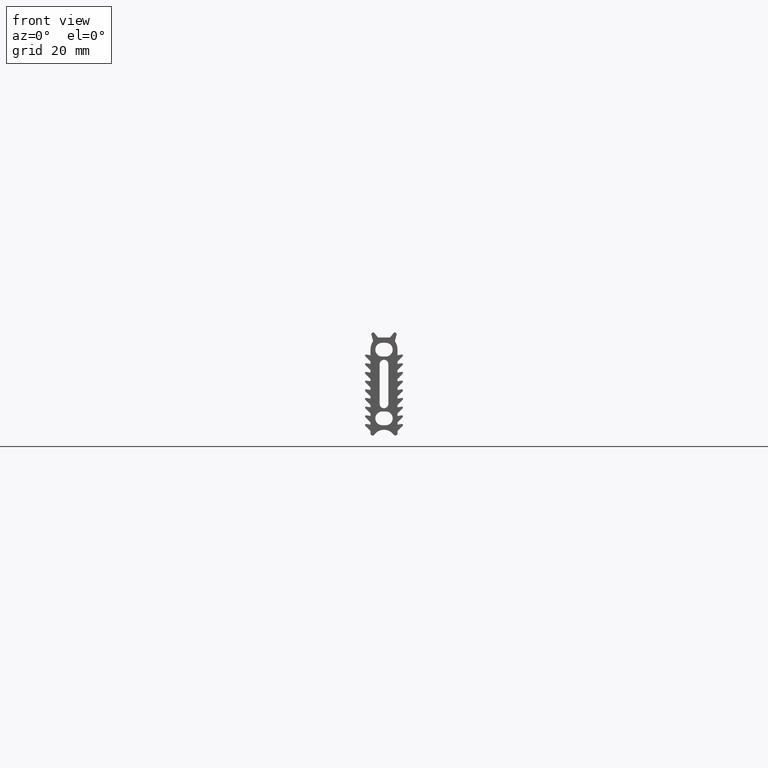
[diagram: clean part render]
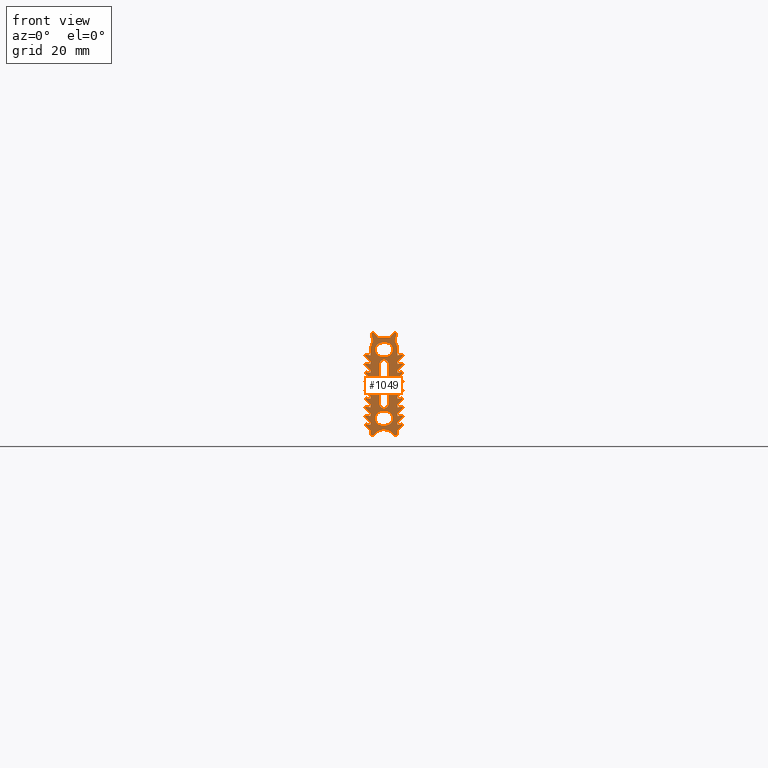
[diagram: same view with one face highlighted and labeled with its STEP entity id]
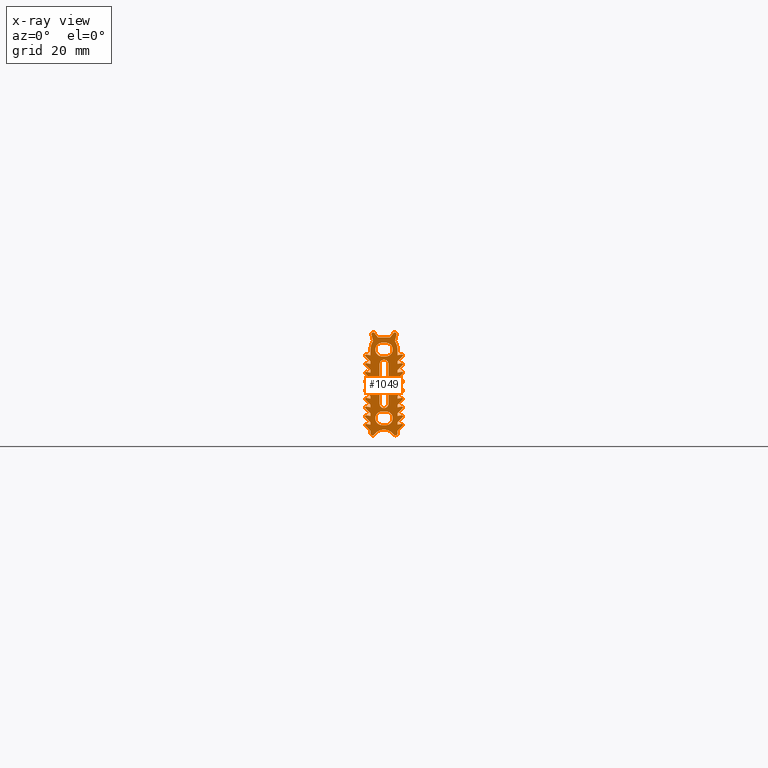
[diagram: x-ray of the same camera — body ghosted, the highlighted face saturated]
A machine part, front view. The second image highlights one B-rep face of the part: STEP entity #1049.
The next image is the same camera in x-ray: the body ghosted, the highlighted face saturated — about 0% of this face is hidden behind the body in this view.
In plain terms, the highlighted face is a freeform B-spline surface patch.
Its self-contained STEP definition (entity closure, byte-faithful):
#44=CARTESIAN_POINT('',(-5.774347078321835,0.0,2.823542531187559));
#45=CARTESIAN_POINT('',(5.774347078321842,0.0,2.823542531187559));
#46=CARTESIAN_POINT('',(-5.774347078321835,0.0,-28.523458698436340));
#47=CARTESIAN_POINT('',(5.774347078321842,0.0,-28.523458698436340));
#48=B_SPLINE_SURFACE_WITH_KNOTS('',1,1,((#44,#46),(#45,#47)),.UNSPECIFIED.,.F.,.F.,.U.,(2,2),(2,2),(0.0,11.548694156643680),(0.0,31.347001229623899),.UNSPECIFIED.);
#49=CARTESIAN_POINT('',(2.607942751445665,0.0,1.210308095053820));
#50=VERTEX_POINT('',#49);
#51=CARTESIAN_POINT('',(1.650000000000000,0.0,0.0));
#52=VERTEX_POINT('',#51);
#53=CARTESIAN_POINT('',(2.607942751445665,0.0,1.210308095053820));
#54=CARTESIAN_POINT('',(1.650000000000000,0.0,0.0));
#55=QUASI_UNIFORM_CURVE('',1,(#53,#54),.UNSPECIFIED.,.F.,.U.);
#56=EDGE_CURVE('',#50,#52,#55,.T.);
#57=ORIENTED_EDGE('',*,*,#56,.T.);
#58=CARTESIAN_POINT('',(-1.650000000000000,0.0,0.0));
#59=VERTEX_POINT('',#58);
#60=CARTESIAN_POINT('',(1.650000000000000,0.0,0.0));
#61=CARTESIAN_POINT('',(-1.650000000000000,0.0,0.0));
#62=QUASI_UNIFORM_CURVE('',1,(#60,#61),.UNSPECIFIED.,.F.,.U.);
#63=EDGE_CURVE('',#52,#59,#62,.T.);
#64=ORIENTED_EDGE('',*,*,#63,.T.);
#65=CARTESIAN_POINT('',(-2.607942751445550,0.0,1.210308095053846));
#66=VERTEX_POINT('',#65);
#67=CARTESIAN_POINT('',(-1.650000000000000,0.0,0.0));
#68=CARTESIAN_POINT('',(-2.607942751445550,0.0,1.210308095053846));
#69=QUASI_UNIFORM_CURVE('',1,(#67,#68),.UNSPECIFIED.,.F.,.U.);
#70=EDGE_CURVE('',#59,#66,#69,.T.);
#71=ORIENTED_EDGE('',*,*,#70,.T.);
#72=CARTESIAN_POINT('',(-3.482962913144495,0.0,0.770590477448715));
#73=VERTEX_POINT('',#72);
#74=CARTESIAN_POINT('',(-2.607942751445550,0.0,1.210308095053846));
#75=CARTESIAN_POINT('',(-2.860660747035028,0.0,1.529603413449483));
#76=CARTESIAN_POINT('',(-3.224508030528344,0.0,1.346761842851687));
#77=CARTESIAN_POINT('',(-3.588355314021661,0.0,1.163920272253890));
#78=CARTESIAN_POINT('',(-3.482962913144504,0.0,0.770590477448712));
#86=(BOUNDED_CURVE()B_SPLINE_CURVE(2,(#74,#75,#76,#77,#78),.UNSPECIFIED.,.F.,.U.)B_SPLINE_CURVE_WITH_KNOTS((3,2,3),(0.0,0.500000000000000,1.0),.UNSPECIFIED.)CURVE()GEOMETRIC_REPRESENTATION_ITEM()RATIONAL_B_SPLINE_CURVE((1.0,0.775388696939473,1.0,0.775388696939473,1.0))REPRESENTATION_ITEM(''));
#87=EDGE_CURVE('',#66,#73,#86,.T.);
#88=ORIENTED_EDGE('',*,*,#87,.T.);
#89=CARTESIAN_POINT('',(-3.014889893381550,0.0,-0.976281813958963));
#90=VERTEX_POINT('',#89);
#91=CARTESIAN_POINT('',(-3.482962913144495,0.0,0.770590477448715));
#92=CARTESIAN_POINT('',(-3.014889893381550,0.0,-0.976281813958963));
#93=QUASI_UNIFORM_CURVE('',1,(#91,#92),.UNSPECIFIED.,.F.,.U.);
#94=EDGE_CURVE('',#73,#90,#93,.T.);
#95=ORIENTED_EDGE('',*,*,#94,.T.);
#96=CARTESIAN_POINT('',(-3.749999999999940,0.0,-3.350000000000000));
#97=VERTEX_POINT('',#96);
#98=CARTESIAN_POINT('',(-3.014889893381552,0.0,-0.976281813958961));
#99=CARTESIAN_POINT('',(-3.749999999999940,0.0,-2.049313816630190));
#100=CARTESIAN_POINT('',(-3.749999999999940,0.0,-3.350000000000000));
#108=(BOUNDED_CURVE()B_SPLINE_CURVE(2,(#98,#99,#100),.UNSPECIFIED.,.F.,.U.)CURVE()GEOMETRIC_REPRESENTATION_ITEM()QUASI_UNIFORM_CURVE()RATIONAL_B_SPLINE_CURVE((1.0,0.955241797697965,1.0))REPRESENTATION_ITEM(''));
#109=EDGE_CURVE('',#90,#97,#108,.T.);
#110=ORIENTED_EDGE('',*,*,#109,.T.);
#111=CARTESIAN_POINT('',(-3.750000000000000,0.0,-4.900000000000000));
#112=VERTEX_POINT('',#111);
#113=CARTESIAN_POINT('',(-3.749999999999940,0.0,-3.350000000000000));
#114=CARTESIAN_POINT('',(-3.750000000000000,0.0,-4.900000000000000));
#115=QUASI_UNIFORM_CURVE('',1,(#113,#114),.UNSPECIFIED.,.F.,.U.);
#116=EDGE_CURVE('',#97,#112,#115,.T.);
#117=ORIENTED_EDGE('',*,*,#116,.T.);
#118=CARTESIAN_POINT('',(-4.899645318185560,0.0,-4.704256181773199));
#119=VERTEX_POINT('',#118);
#120=CARTESIAN_POINT('',(-3.750000000000000,0.0,-4.900000000000000));
#121=CARTESIAN_POINT('',(-4.899645318185560,0.0,-4.704256181773199));
#122=QUASI_UNIFORM_CURVE('',1,(#120,#121),.UNSPECIFIED.,.F.,.U.);
#123=EDGE_CURVE('',#112,#119,#122,.T.);
#124=ORIENTED_EDGE('',*,*,#123,.T.);
#125=CARTESIAN_POINT('',(-5.162132034355720,0.0,-5.212132034356091));
#126=VERTEX_POINT('',#125);
#127=CARTESIAN_POINT('',(-4.899645318185560,0.0,-4.704256181773199));
#128=CARTESIAN_POINT('',(-5.115825259202054,0.0,-4.667448406010207));
#129=CARTESIAN_POINT('',(-5.216509752838508,0.0,-4.862259114123710));
#130=CARTESIAN_POINT('',(-5.317194246474962,0.0,-5.057069822237211));
#131=CARTESIAN_POINT('',(-5.162132034355729,0.0,-5.212132034356100));
#139=(BOUNDED_CURVE()B_SPLINE_CURVE(2,(#127,#128,#129,#130,#131),.UNSPECIFIED.,.F.,.U.)B_SPLINE_CURVE_WITH_KNOTS((3,2,3),(0.0,0.500000000000000,1.0),.UNSPECIFIED.)CURVE()GEOMETRIC_REPRESENTATION_ITEM()RATIONAL_B_SPLINE_CURVE((1.0,0.807313795904299,1.0,0.807313795904299,1.0))REPRESENTATION_ITEM(''));
#140=EDGE_CURVE('',#119,#126,#139,.T.);
#141=ORIENTED_EDGE('',*,*,#140,.T.);
#142=CARTESIAN_POINT('',(-3.749999999999330,0.0,-6.624264068709540));
#143=VERTEX_POINT('',#142);
#144=CARTESIAN_POINT('',(-5.162132034355720,0.0,-5.212132034356091));
#145=CARTESIAN_POINT('',(-3.749999999999330,0.0,-6.624264068709540));
#146=QUASI_UNIFORM_CURVE('',1,(#144,#145),.UNSPECIFIED.,.F.,.U.);
#147=EDGE_CURVE('',#126,#143,#146,.T.);
#148=ORIENTED_EDGE('',*,*,#147,.T.);
#149=CARTESIAN_POINT('',(-3.750000000000000,0.0,-7.300000000000080));
#150=VERTEX_POINT('',#149);
#151=CARTESIAN_POINT('',(-3.749999999999330,0.0,-6.624264068709540));
#152=CARTESIAN_POINT('',(-3.750000000000000,0.0,-7.300000000000080));
#153=QUASI_UNIFORM_CURVE('',1,(#151,#152),.UNSPECIFIED.,.F.,.U.);
#154=EDGE_CURVE('',#143,#150,#153,.T.);
#155=ORIENTED_EDGE('',*,*,#154,.T.);
#156=CARTESIAN_POINT('',(-4.899645318185560,0.0,-7.104256181773170));
#157=VERTEX_POINT('',#156);
#158=CARTESIAN_POINT('',(-3.750000000000000,0.0,-7.300000000000080));
#159=CARTESIAN_POINT('',(-4.899645318185560,0.0,-7.104256181773170));
#160=QUASI_UNIFORM_CURVE('',1,(#158,#159),.UNSPECIFIED.,.F.,.U.);
#161=EDGE_CURVE('',#150,#157,#160,.T.);
#162=ORIENTED_EDGE('',*,*,#161,.T.);
#163=CARTESIAN_POINT('',(-5.162132034355720,0.0,-7.612132034356180));
#164=VERTEX_POINT('',#163);
#165=CARTESIAN_POINT('',(-4.899645318185560,0.0,-7.104256181773170));
#166=CARTESIAN_POINT('',(-5.115825259202066,0.0,-7.067448406010321));
#167=CARTESIAN_POINT('',(-5.216509752838511,0.0,-7.262259114123816));
#168=CARTESIAN_POINT('',(-5.317194246474956,0.0,-7.457069822237310));
#169=CARTESIAN_POINT('',(-5.162132034355734,0.0,-7.612132034356195));
#177=(BOUNDED_CURVE()B_SPLINE_CURVE(2,(#165,#166,#167,#168,#169),.UNSPECIFIED.,.F.,.U.)B_SPLINE_CURVE_WITH_KNOTS((3,2,3),(0.0,0.500000000000000,1.0),.UNSPECIFIED.)CURVE()GEOMETRIC_REPRESENTATION_ITEM()RATIONAL_B_SPLINE_CURVE((1.0,0.807313795904314,1.0,0.807313795904314,1.0))REPRESENTATION_ITEM(''));
#178=EDGE_CURVE('',#157,#164,#177,.T.);
#179=ORIENTED_EDGE('',*,*,#178,.T.);
#180=CARTESIAN_POINT('',(-3.749999999999310,0.0,-9.024264068709609));
#181=VERTEX_POINT('',#180);
#182=CARTESIAN_POINT('',(-5.162132034355720,0.0,-7.612132034356180));
#183=CARTESIAN_POINT('',(-3.749999999999310,0.0,-9.024264068709609));
#184=QUASI_UNIFORM_CURVE('',1,(#182,#183),.UNSPECIFIED.,.F.,.U.);
#185=EDGE_CURVE('',#164,#181,#184,.T.);
#186=ORIENTED_EDGE('',*,*,#185,.T.);
#187=CARTESIAN_POINT('',(-3.750000000000000,0.0,-9.700000000000001));
#188=VERTEX_POINT('',#187);
#189=CARTESIAN_POINT('',(-3.749999999999310,0.0,-9.024264068709609));
#190=CARTESIAN_POINT('',(-3.750000000000000,0.0,-9.700000000000001));
#191=QUASI_UNIFORM_CURVE('',1,(#189,#190),.UNSPECIFIED.,.F.,.U.);
#192=EDGE_CURVE('',#181,#188,#191,.T.);
#193=ORIENTED_EDGE('',*,*,#192,.T.);
#194=CARTESIAN_POINT('',(-4.899645318185560,0.0,-9.504256181773261));
#195=VERTEX_POINT('',#194);
#196=CARTESIAN_POINT('',(-3.750000000000000,0.0,-9.700000000000001));
#197=CARTESIAN_POINT('',(-4.899645318185560,0.0,-9.504256181773261));
#198=QUASI_UNIFORM_CURVE('',1,(#196,#197),.UNSPECIFIED.,.F.,.U.);
#199=EDGE_CURVE('',#188,#195,#198,.T.);
#200=ORIENTED_EDGE('',*,*,#199,.T.);
#201=CARTESIAN_POINT('',(-5.162132034355720,0.0,-10.012132034356140));
#202=VERTEX_POINT('',#201);
#203=CARTESIAN_POINT('',(-4.899645318185560,0.0,-9.504256181773261));
#204=CARTESIAN_POINT('',(-5.115825259202045,0.0,-9.467448406010314));
#205=CARTESIAN_POINT('',(-5.216509752838501,0.0,-9.662259114123797));
#206=CARTESIAN_POINT('',(-5.317194246474957,0.0,-9.857069822237282));
#207=CARTESIAN_POINT('',(-5.162132034355720,0.0,-10.012132034356140));
#215=(BOUNDED_CURVE()B_SPLINE_CURVE(2,(#203,#204,#205,#206,#207),.UNSPECIFIED.,.F.,.U.)B_SPLINE_CURVE_WITH_KNOTS((3,2,3),(0.0,0.500000000000000,1.0),.UNSPECIFIED.)CURVE()GEOMETRIC_REPRESENTATION_ITEM()RATIONAL_B_SPLINE_CURVE((1.0,0.807313795904319,1.0,0.807313795904319,1.0))REPRESENTATION_ITEM(''));
#216=EDGE_CURVE('',#195,#202,#215,.T.);
#217=ORIENTED_EDGE('',*,*,#216,.T.);
#218=CARTESIAN_POINT('',(-3.749999999999330,0.0,-11.424264068709601));
#219=VERTEX_POINT('',#218);
#220=CARTESIAN_POINT('',(-5.162132034355720,0.0,-10.012132034356140));
#221=CARTESIAN_POINT('',(-3.749999999999330,0.0,-11.424264068709601));
#222=QUASI_UNIFORM_CURVE('',1,(#220,#221),.UNSPECIFIED.,.F.,.U.);
#223=EDGE_CURVE('',#202,#219,#222,.T.);
#224=ORIENTED_EDGE('',*,*,#223,.T.);
#225=CARTESIAN_POINT('',(-3.750000000000000,0.0,-12.100000000000000));
#226=VERTEX_POINT('',#225);
#227=CARTESIAN_POINT('',(-3.749999999999330,0.0,-11.424264068709601));
#228=CARTESIAN_POINT('',(-3.750000000000000,0.0,-12.100000000000000));
#229=QUASI_UNIFORM_CURVE('',1,(#227,#228),.UNSPECIFIED.,.F.,.U.);
#230=EDGE_CURVE('',#219,#226,#229,.T.);
#231=ORIENTED_EDGE('',*,*,#230,.T.);
#232=CARTESIAN_POINT('',(-4.899645318185560,0.0,-11.904256181773240));
#233=VERTEX_POINT('',#232);
#234=CARTESIAN_POINT('',(-3.750000000000000,0.0,-12.100000000000000));
#235=CARTESIAN_POINT('',(-4.899645318185560,0.0,-11.904256181773240));
#236=QUASI_UNIFORM_CURVE('',1,(#234,#235),.UNSPECIFIED.,.F.,.U.);
#237=EDGE_CURVE('',#226,#233,#236,.T.);
#238=ORIENTED_EDGE('',*,*,#237,.T.);
#239=CARTESIAN_POINT('',(-5.162132034355720,0.0,-12.412132034356141));
#240=VERTEX_POINT('',#239);
#241=CARTESIAN_POINT('',(-4.899645318185554,0.0,-11.904256181773199));
#242=CARTESIAN_POINT('',(-5.115825259202047,0.0,-11.867448406010316));
#243=CARTESIAN_POINT('',(-5.216509752838502,0.0,-12.062259114123799));
#244=CARTESIAN_POINT('',(-5.317194246474957,0.0,-12.257069822237279));
#245=CARTESIAN_POINT('',(-5.162132034355720,0.0,-12.412132034356141));
#253=(BOUNDED_CURVE()B_SPLINE_CURVE(2,(#241,#242,#243,#244,#245),.UNSPECIFIED.,.F.,.U.)B_SPLINE_CURVE_WITH_KNOTS((3,2,3),(0.0,0.500000000000000,1.0),.UNSPECIFIED.)CURVE()GEOMETRIC_REPRESENTATION_ITEM()RATIONAL_B_SPLINE_CURVE((1.0,0.807313795904322,1.0,0.807313795904322,1.0))REPRESENTATION_ITEM(''));
#254=EDGE_CURVE('',#233,#240,#253,.T.);
#255=ORIENTED_EDGE('',*,*,#254,.T.);
#256=CARTESIAN_POINT('',(-3.749999999999330,0.0,-13.824264068709560));
#257=VERTEX_POINT('',#256);
#258=CARTESIAN_POINT('',(-5.162132034355720,0.0,-12.412132034356141));
#259=CARTESIAN_POINT('',(-3.749999999999330,0.0,-13.824264068709560));
#260=QUASI_UNIFORM_CURVE('',1,(#258,#259),.UNSPECIFIED.,.F.,.U.);
#261=EDGE_CURVE('',#240,#257,#260,.T.);
#262=ORIENTED_EDGE('',*,*,#261,.T.);
#263=CARTESIAN_POINT('',(-3.750000000000000,0.0,-14.500000000000000));
#264=VERTEX_POINT('',#263);
#265=CARTESIAN_POINT('',(-3.749999999999330,0.0,-13.824264068709560));
#266=CARTESIAN_POINT('',(-3.750000000000000,0.0,-14.500000000000000));
#267=QUASI_UNIFORM_CURVE('',1,(#265,#266),.UNSPECIFIED.,.F.,.U.);
#268=EDGE_CURVE('',#257,#264,#267,.T.);
#269=ORIENTED_EDGE('',*,*,#268,.T.);
#270=CARTESIAN_POINT('',(-4.899645318185560,0.0,-14.304256181773219));
#271=VERTEX_POINT('',#270);
#272=CARTESIAN_POINT('',(-3.750000000000000,0.0,-14.500000000000000));
#273=CARTESIAN_POINT('',(-4.899645318185560,0.0,-14.304256181773219));
#274=QUASI_UNIFORM_CURVE('',1,(#272,#273),.UNSPECIFIED.,.F.,.U.);
#275=EDGE_CURVE('',#264,#271,#274,.T.);
#276=ORIENTED_EDGE('',*,*,#275,.T.);
#277=CARTESIAN_POINT('',(-5.162132034355720,0.0,-14.812132034356219));
#278=VERTEX_POINT('',#277);
#279=CARTESIAN_POINT('',(-4.899645318185557,0.0,-14.304256181773200));
#280=CARTESIAN_POINT('',(-5.115825259202071,0.0,-14.267448406010320));
#281=CARTESIAN_POINT('',(-5.216509752838515,0.0,-14.462259114123830));
#282=CARTESIAN_POINT('',(-5.317194246474960,0.0,-14.657069822237336));
#283=CARTESIAN_POINT('',(-5.162132034355714,0.0,-14.812132034356210));
#291=(BOUNDED_CURVE()B_SPLINE_CURVE(2,(#279,#280,#281,#282,#283),.UNSPECIFIED.,.F.,.U.)B_SPLINE_CURVE_WITH_KNOTS((3,2,3),(0.0,0.500000000000000,1.0),.UNSPECIFIED.)CURVE()GEOMETRIC_REPRESENTATION_ITEM()RATIONAL_B_SPLINE_CURVE((1.0,0.807313795904295,1.0,0.807313795904295,1.0))REPRESENTATION_ITEM(''));
#292=EDGE_CURVE('',#271,#278,#291,.T.);
#293=ORIENTED_EDGE('',*,*,#292,.T.);
#294=CARTESIAN_POINT('',(-3.749999999999330,0.0,-16.224264068709552));
#295=VERTEX_POINT('',#294);
#296=CARTESIAN_POINT('',(-5.162132034355720,0.0,-14.812132034356219));
#297=CARTESIAN_POINT('',(-3.749999999999330,0.0,-16.224264068709552));
#298=QUASI_UNIFORM_CURVE('',1,(#296,#297),.UNSPECIFIED.,.F.,.U.);
#299=EDGE_CURVE('',#278,#295,#298,.T.);
#300=ORIENTED_EDGE('',*,*,#299,.T.);
#301=CARTESIAN_POINT('',(-3.750000000000000,0.0,-16.899999999999999));
#302=VERTEX_POINT('',#301);
#303=CARTESIAN_POINT('',(-3.749999999999330,0.0,-16.224264068709552));
#304=CARTESIAN_POINT('',(-3.750000000000000,0.0,-16.899999999999999));
#305=QUASI_UNIFORM_CURVE('',1,(#303,#304),.UNSPECIFIED.,.F.,.U.);
#306=EDGE_CURVE('',#295,#302,#305,.T.);
#307=ORIENTED_EDGE('',*,*,#306,.T.);
#308=CARTESIAN_POINT('',(-4.899645318185560,0.0,-16.704256181773200));
#309=VERTEX_POINT('',#308);
#310=CARTESIAN_POINT('',(-3.750000000000000,0.0,-16.899999999999999));
#311=CARTESIAN_POINT('',(-4.899645318185560,0.0,-16.704256181773200));
#312=QUASI_UNIFORM_CURVE('',1,(#310,#311),.UNSPECIFIED.,.F.,.U.);
#313=EDGE_CURVE('',#302,#309,#312,.T.);
#314=ORIENTED_EDGE('',*,*,#313,.T.);
#315=CARTESIAN_POINT('',(-5.162132034355720,0.0,-17.212132034356198));
#316=VERTEX_POINT('',#315);
#317=CARTESIAN_POINT('',(-4.899645318185560,0.0,-16.704256181773200));
#318=CARTESIAN_POINT('',(-5.115825259202068,0.0,-16.667448406010319));
#319=CARTESIAN_POINT('',(-5.216509752838513,0.0,-16.862259114123820));
#320=CARTESIAN_POINT('',(-5.317194246474958,0.0,-17.057069822237317));
#321=CARTESIAN_POINT('',(-5.162132034355725,0.0,-17.212132034356209));
#329=(BOUNDED_CURVE()B_SPLINE_CURVE(2,(#317,#318,#319,#320,#321),.UNSPECIFIED.,.F.,.U.)B_SPLINE_CURVE_WITH_KNOTS((3,2,3),(0.0,0.500000000000000,1.0),.UNSPECIFIED.)CURVE()GEOMETRIC_REPRESENTATION_ITEM()RATIONAL_B_SPLINE_CURVE((1.0,0.807313795904305,1.0,0.807313795904305,1.0))REPRESENTATION_ITEM(''));
#330=EDGE_CURVE('',#309,#316,#329,.T.);
#331=ORIENTED_EDGE('',*,*,#330,.T.);
#332=CARTESIAN_POINT('',(-3.749999999999330,0.0,-18.624264068709650));
#333=VERTEX_POINT('',#332);
#334=CARTESIAN_POINT('',(-5.162132034355720,0.0,-17.212132034356198));
#335=CARTESIAN_POINT('',(-3.749999999999330,0.0,-18.624264068709650));
#336=QUASI_UNIFORM_CURVE('',1,(#334,#335),.UNSPECIFIED.,.F.,.U.);
#337=EDGE_CURVE('',#316,#333,#336,.T.);
#338=ORIENTED_EDGE('',*,*,#337,.T.);
#339=CARTESIAN_POINT('',(-3.750000000000000,0.0,-19.300000000000001));
#340=VERTEX_POINT('',#339);
#341=CARTESIAN_POINT('',(-3.749999999999330,0.0,-18.624264068709650));
#342=CARTESIAN_POINT('',(-3.750000000000000,0.0,-19.300000000000001));
#343=QUASI_UNIFORM_CURVE('',1,(#341,#342),.UNSPECIFIED.,.F.,.U.);
#344=EDGE_CURVE('',#333,#340,#343,.T.);
#345=ORIENTED_EDGE('',*,*,#344,.T.);
#346=CARTESIAN_POINT('',(-4.899645318185560,0.0,-19.104256181773149));
#347=VERTEX_POINT('',#346);
#348=CARTESIAN_POINT('',(-3.750000000000000,0.0,-19.300000000000001));
#349=CARTESIAN_POINT('',(-4.899645318185560,0.0,-19.104256181773149));
#350=QUASI_UNIFORM_CURVE('',1,(#348,#349),.UNSPECIFIED.,.F.,.U.);
#351=EDGE_CURVE('',#340,#347,#350,.T.);
#352=ORIENTED_EDGE('',*,*,#351,.T.);
#353=CARTESIAN_POINT('',(-5.162132034355720,0.0,-19.612132034356151));
#354=VERTEX_POINT('',#353);
#355=CARTESIAN_POINT('',(-4.899645318185567,0.0,-19.104256181773199));
#356=CARTESIAN_POINT('',(-5.115825259202060,0.0,-19.067448406010332));
#357=CARTESIAN_POINT('',(-5.216509752838507,0.0,-19.262259114123811));
#358=CARTESIAN_POINT('',(-5.317194246474953,0.0,-19.457069822237298));
#359=CARTESIAN_POINT('',(-5.162132034355749,0.0,-19.612132034356179));
#367=(BOUNDED_CURVE()B_SPLINE_CURVE(2,(#355,#356,#357,#358,#359),.UNSPECIFIED.,.F.,.U.)B_SPLINE_CURVE_WITH_KNOTS((3,2,3),(0.0,0.500000000000000,1.0),.UNSPECIFIED.)CURVE()GEOMETRIC_REPRESENTATION_ITEM()RATIONAL_B_SPLINE_CURVE((1.0,0.807313795904325,1.0,0.807313795904325,1.0))REPRESENTATION_ITEM(''));
#368=EDGE_CURVE('',#347,#354,#367,.T.);
#369=ORIENTED_EDGE('',*,*,#368,.T.);
#370=CARTESIAN_POINT('',(-3.749999999999310,0.0,-21.024264068709599));
#371=VERTEX_POINT('',#370);
#372=CARTESIAN_POINT('',(-5.162132034355720,0.0,-19.612132034356151));
#373=CARTESIAN_POINT('',(-3.749999999999310,0.0,-21.024264068709599));
#374=QUASI_UNIFORM_CURVE('',1,(#372,#373),.UNSPECIFIED.,.F.,.U.);
#375=EDGE_CURVE('',#354,#371,#374,.T.);
#376=ORIENTED_EDGE('',*,*,#375,.T.);
#377=CARTESIAN_POINT('',(-3.750000000000000,0.0,-21.699999999999999));
#378=VERTEX_POINT('',#377);
#379=CARTESIAN_POINT('',(-3.749999999999310,0.0,-21.024264068709599));
#380=CARTESIAN_POINT('',(-3.750000000000000,0.0,-21.699999999999999));
#381=QUASI_UNIFORM_CURVE('',1,(#379,#380),.UNSPECIFIED.,.F.,.U.);
#382=EDGE_CURVE('',#371,#378,#381,.T.);
#383=ORIENTED_EDGE('',*,*,#382,.T.);
#384=CARTESIAN_POINT('',(-4.899645318185560,0.0,-21.504256181773250));
#385=VERTEX_POINT('',#384);
#386=CARTESIAN_POINT('',(-3.750000000000000,0.0,-21.699999999999999));
#387=CARTESIAN_POINT('',(-4.899645318185560,0.0,-21.504256181773250));
#388=QUASI_UNIFORM_CURVE('',1,(#386,#387),.UNSPECIFIED.,.F.,.U.);
#389=EDGE_CURVE('',#378,#385,#388,.T.);
#390=ORIENTED_EDGE('',*,*,#389,.T.);
#391=CARTESIAN_POINT('',(-5.162132034355720,0.0,-22.012132034356149));
#392=VERTEX_POINT('',#391);
#393=CARTESIAN_POINT('',(-4.899645318185551,0.0,-21.504256181773201));
#394=CARTESIAN_POINT('',(-5.115825259202048,0.0,-21.467448406010313));
#395=CARTESIAN_POINT('',(-5.216509752838503,0.0,-21.662259114123799));
#396=CARTESIAN_POINT('',(-5.317194246474958,0.0,-21.857069822237282));
#397=CARTESIAN_POINT('',(-5.162132034355749,0.0,-22.012132034356181));
#405=(BOUNDED_CURVE()B_SPLINE_CURVE(2,(#393,#394,#395,#396,#397),.UNSPECIFIED.,.F.,.U.)B_SPLINE_CURVE_WITH_KNOTS((3,2,3),(0.0,0.500000000000000,1.0),.UNSPECIFIED.)CURVE()GEOMETRIC_REPRESENTATION_ITEM()RATIONAL_B_SPLINE_CURVE((1.0,0.807313795904317,1.0,0.807313795904317,1.0))REPRESENTATION_ITEM(''));
#406=EDGE_CURVE('',#385,#392,#405,.T.);
#407=ORIENTED_EDGE('',*,*,#406,.T.);
#408=CARTESIAN_POINT('',(-3.749999999999330,0.0,-23.424264068709601));
#409=VERTEX_POINT('',#408);
#410=CARTESIAN_POINT('',(-5.162132034355720,0.0,-22.012132034356149));
#411=CARTESIAN_POINT('',(-3.749999999999330,0.0,-23.424264068709601));
#412=QUASI_UNIFORM_CURVE('',1,(#410,#411),.UNSPECIFIED.,.F.,.U.);
#413=EDGE_CURVE('',#392,#409,#412,.T.);
#414=ORIENTED_EDGE('',*,*,#413,.T.);
#415=CARTESIAN_POINT('',(-3.750000000000000,0.0,-24.100000000000001));
#416=VERTEX_POINT('',#415);
#417=CARTESIAN_POINT('',(-3.749999999999330,0.0,-23.424264068709601));
#418=CARTESIAN_POINT('',(-3.750000000000000,0.0,-24.100000000000001));
#419=QUASI_UNIFORM_CURVE('',1,(#417,#418),.UNSPECIFIED.,.F.,.U.);
#420=EDGE_CURVE('',#409,#416,#419,.T.);
#421=ORIENTED_EDGE('',*,*,#420,.T.);
#422=CARTESIAN_POINT('',(-4.899645318185560,0.0,-23.904256181773249));
#423=VERTEX_POINT('',#422);
#424=CARTESIAN_POINT('',(-3.750000000000000,0.0,-24.100000000000001));
#425=CARTESIAN_POINT('',(-4.899645318185560,0.0,-23.904256181773249));
#426=QUASI_UNIFORM_CURVE('',1,(#424,#425),.UNSPECIFIED.,.F.,.U.);
#427=EDGE_CURVE('',#416,#423,#426,.T.);
#428=ORIENTED_EDGE('',*,*,#427,.T.);
#429=CARTESIAN_POINT('',(-5.162132034355720,0.0,-24.412132034356251));
#430=VERTEX_POINT('',#429);
#431=CARTESIAN_POINT('',(-4.899645318185551,0.0,-23.904256181773199));
#432=CARTESIAN_POINT('',(-5.115825259202076,0.0,-23.867448406010308));
#433=CARTESIAN_POINT('',(-5.216509752838519,0.0,-24.062259114123830));
#434=CARTESIAN_POINT('',(-5.317194246474965,0.0,-24.257069822237355));
#435=CARTESIAN_POINT('',(-5.162132034355699,0.0,-24.412132034356230));
#443=(BOUNDED_CURVE()B_SPLINE_CURVE(2,(#431,#432,#433,#434,#435),.UNSPECIFIED.,.F.,.U.)B_SPLINE_CURVE_WITH_KNOTS((3,2,3),(0.0,0.500000000000000,1.0),.UNSPECIFIED.)CURVE()GEOMETRIC_REPRESENTATION_ITEM()RATIONAL_B_SPLINE_CURVE((1.0,0.807313795904282,1.0,0.807313795904282,1.0))REPRESENTATION_ITEM(''));
#444=EDGE_CURVE('',#423,#430,#443,.T.);
#445=ORIENTED_EDGE('',*,*,#444,.T.);
#446=CARTESIAN_POINT('',(-3.749999999999310,0.0,-25.824264068709549));
#447=VERTEX_POINT('',#446);
#448=CARTESIAN_POINT('',(-5.162132034355720,0.0,-24.412132034356251));
#449=CARTESIAN_POINT('',(-3.749999999999310,0.0,-25.824264068709549));
#450=QUASI_UNIFORM_CURVE('',1,(#448,#449),.UNSPECIFIED.,.F.,.U.);
#451=EDGE_CURVE('',#430,#447,#450,.T.);
#452=ORIENTED_EDGE('',*,*,#451,.T.);
#453=CARTESIAN_POINT('',(-3.750000000000000,0.0,-26.500000000000000));
#454=VERTEX_POINT('',#453);
#455=CARTESIAN_POINT('',(-3.749999999999310,0.0,-25.824264068709549));
#456=CARTESIAN_POINT('',(-3.750000000000000,0.0,-26.500000000000000));
#457=QUASI_UNIFORM_CURVE('',1,(#455,#456),.UNSPECIFIED.,.F.,.U.);
#458=EDGE_CURVE('',#447,#454,#457,.T.);
#459=ORIENTED_EDGE('',*,*,#458,.T.);
#460=CARTESIAN_POINT('',(-2.665481674344080,0.0,-26.853895453635101));
#461=VERTEX_POINT('',#460);
#462=CARTESIAN_POINT('',(-3.750000000000000,0.0,-26.500000000000000));
#463=CARTESIAN_POINT('',(-3.750000000000000,0.0,-26.935347213575788));
#464=CARTESIAN_POINT('',(-3.336130336869695,0.0,-27.070399419439379));
#465=CARTESIAN_POINT('',(-2.922260673739390,0.0,-27.205451625302956));
#466=CARTESIAN_POINT('',(-2.665481674344087,0.0,-26.853895453635090));
#474=(BOUNDED_CURVE()B_SPLINE_CURVE(2,(#462,#463,#464,#465,#466),.UNSPECIFIED.,.F.,.U.)B_SPLINE_CURVE_WITH_KNOTS((3,2,3),(0.0,0.500000000000000,1.0),.UNSPECIFIED.)CURVE()GEOMETRIC_REPRESENTATION_ITEM()RATIONAL_B_SPLINE_CURVE((1.0,0.809387802019575,1.0,0.809387802019575,1.0))REPRESENTATION_ITEM(''));
#475=EDGE_CURVE('',#454,#461,#474,.T.);
#476=ORIENTED_EDGE('',*,*,#475,.T.);
#477=CARTESIAN_POINT('',(2.665481674344105,0.0,-26.853895453635150));
#478=VERTEX_POINT('',#477);
#479=CARTESIAN_POINT('',(2.665481674344115,0.0,-26.853895453635140));
#480=CARTESIAN_POINT('',(1.676587301587340,0.0,-25.500000000000007));
#481=CARTESIAN_POINT('',(7.105427E-015,0.0,-25.500000000000011));
#482=CARTESIAN_POINT('',(-1.676587301587296,0.0,-25.500000000000007));
#483=CARTESIAN_POINT('',(-2.665481674344074,0.0,-26.853895453635101));
#491=(BOUNDED_CURVE()B_SPLINE_CURVE(2,(#479,#480,#481,#482,#483),.UNSPECIFIED.,.F.,.U.)B_SPLINE_CURVE_WITH_KNOTS((3,2,3),(0.0,0.500000000000000,1.0),.UNSPECIFIED.)CURVE()GEOMETRIC_REPRESENTATION_ITEM()RATIONAL_B_SPLINE_CURVE((1.0,0.891578868092573,1.0,0.891578868092573,1.0))REPRESENTATION_ITEM(''));
#492=EDGE_CURVE('',#478,#461,#491,.T.);
#493=ORIENTED_EDGE('',*,*,#492,.F.);
#494=CARTESIAN_POINT('',(3.750000000000000,0.0,-26.500000000000000));
#495=VERTEX_POINT('',#494);
#496=CARTESIAN_POINT('',(2.665481674344119,0.0,-26.853895453635140));
#497=CARTESIAN_POINT('',(2.922260673739442,0.0,-27.205451625302949));
#498=CARTESIAN_POINT('',(3.336130336869720,0.0,-27.070399419439369));
#499=CARTESIAN_POINT('',(3.750000000000000,0.0,-26.935347213575778));
#500=CARTESIAN_POINT('',(3.750000000000000,0.0,-26.500000000000000));
#508=(BOUNDED_CURVE()B_SPLINE_CURVE(2,(#496,#497,#498,#499,#500),.UNSPECIFIED.,.F.,.U.)B_SPLINE_CURVE_WITH_KNOTS((3,2,3),(0.0,0.500000000000000,1.0),.UNSPECIFIED.)CURVE()GEOMETRIC_REPRESENTATION_ITEM()RATIONAL_B_SPLINE_CURVE((1.0,0.809387802019589,1.0,0.809387802019589,1.0))REPRESENTATION_ITEM(''));
#509=EDGE_CURVE('',#478,#495,#508,.T.);
#510=ORIENTED_EDGE('',*,*,#509,.T.);
#511=CARTESIAN_POINT('',(3.750000000000000,0.0,-25.824264068708999));
#512=VERTEX_POINT('',#511);
#513=CARTESIAN_POINT('',(3.750000000000000,0.0,-26.500000000000000));
#514=CARTESIAN_POINT('',(3.750000000000000,0.0,-25.824264068708999));
#515=QUASI_UNIFORM_CURVE('',1,(#513,#514),.UNSPECIFIED.,.F.,.U.);
#516=EDGE_CURVE('',#495,#512,#515,.T.);
#517=ORIENTED_EDGE('',*,*,#516,.T.);
#518=CARTESIAN_POINT('',(5.162132034355960,0.0,-24.412132034355999));
#519=VERTEX_POINT('',#518);
#520=CARTESIAN_POINT('',(3.750000000000000,0.0,-25.824264068708999));
#521=CARTESIAN_POINT('',(5.162132034355960,0.0,-24.412132034355999));
#522=QUASI_UNIFORM_CURVE('',1,(#520,#521),.UNSPECIFIED.,.F.,.U.);
#523=EDGE_CURVE('',#512,#519,#522,.T.);
#524=ORIENTED_EDGE('',*,*,#523,.T.);
#525=CARTESIAN_POINT('',(4.899645318185570,0.0,-23.904256181773249));
#526=VERTEX_POINT('',#525);
#527=CARTESIAN_POINT('',(5.162132034355944,0.0,-24.412132034355981));
#528=CARTESIAN_POINT('',(5.317194246474934,0.0,-24.257069822237025));
#529=CARTESIAN_POINT('',(5.216509752838442,0.0,-24.062259114123680));
#530=CARTESIAN_POINT('',(5.115825259201953,0.0,-23.867448406010336));
#531=CARTESIAN_POINT('',(4.899645318185561,0.0,-23.904256181773199));
#539=(BOUNDED_CURVE()B_SPLINE_CURVE(2,(#527,#528,#529,#530,#531),.UNSPECIFIED.,.F.,.U.)B_SPLINE_CURVE_WITH_KNOTS((3,2,3),(0.0,0.500000000000000,1.0),.UNSPECIFIED.)CURVE()GEOMETRIC_REPRESENTATION_ITEM()RATIONAL_B_SPLINE_CURVE((1.0,0.807313795904457,1.0,0.807313795904457,1.0))REPRESENTATION_ITEM(''));
#540=EDGE_CURVE('',#519,#526,#539,.T.);
#541=ORIENTED_EDGE('',*,*,#540,.T.);
#542=CARTESIAN_POINT('',(3.750000000000045,0.0,-24.100000000000001));
#543=VERTEX_POINT('',#542);
#544=CARTESIAN_POINT('',(4.899645318185570,0.0,-23.904256181773249));
#545=CARTESIAN_POINT('',(3.750000000000045,0.0,-24.100000000000001));
#546=QUASI_UNIFORM_CURVE('',1,(#544,#545),.UNSPECIFIED.,.F.,.U.);
#547=EDGE_CURVE('',#526,#543,#546,.T.);
#548=ORIENTED_EDGE('',*,*,#547,.T.);
#549=CARTESIAN_POINT('',(3.750000000000000,0.0,-23.424264068708901));
#550=VERTEX_POINT('',#549);
#551=CARTESIAN_POINT('',(3.750000000000045,0.0,-24.100000000000001));
#552=CARTESIAN_POINT('',(3.750000000000000,0.0,-23.424264068708901));
#553=QUASI_UNIFORM_CURVE('',1,(#551,#552),.UNSPECIFIED.,.F.,.U.);
#554=EDGE_CURVE('',#543,#550,#553,.T.);
#555=ORIENTED_EDGE('',*,*,#554,.T.);
#556=CARTESIAN_POINT('',(5.162132034355960,0.0,-22.012132034356000));
#557=VERTEX_POINT('',#556);
#558=CARTESIAN_POINT('',(3.750000000000000,0.0,-23.424264068708901));
#559=CARTESIAN_POINT('',(5.162132034355960,0.0,-22.012132034356000));
#560=QUASI_UNIFORM_CURVE('',1,(#558,#559),.UNSPECIFIED.,.F.,.U.);
#561=EDGE_CURVE('',#550,#557,#560,.T.);
#562=ORIENTED_EDGE('',*,*,#561,.T.);
#563=CARTESIAN_POINT('',(4.899645318185570,0.0,-21.504256181773151));
#564=VERTEX_POINT('',#563);
#565=CARTESIAN_POINT('',(5.162132034355944,0.0,-22.012132034355979));
#566=CARTESIAN_POINT('',(5.317194246474927,0.0,-21.857069822237037));
#567=CARTESIAN_POINT('',(5.216509752838446,0.0,-21.662259114123689));
#568=CARTESIAN_POINT('',(5.115825259201964,0.0,-21.467448406010348));
#569=CARTESIAN_POINT('',(4.899645318185578,0.0,-21.504256181773201));
#577=(BOUNDED_CURVE()B_SPLINE_CURVE(2,(#565,#566,#567,#568,#569),.UNSPECIFIED.,.F.,.U.)B_SPLINE_CURVE_WITH_KNOTS((3,2,3),(0.0,0.500000000000000,1.0),.UNSPECIFIED.)CURVE()GEOMETRIC_REPRESENTATION_ITEM()RATIONAL_B_SPLINE_CURVE((1.0,0.807313795904465,1.0,0.807313795904465,1.0))REPRESENTATION_ITEM(''));
#578=EDGE_CURVE('',#557,#564,#577,.T.);
#579=ORIENTED_EDGE('',*,*,#578,.T.);
#580=CARTESIAN_POINT('',(3.750000000000045,0.0,-21.699999999999999));
#581=VERTEX_POINT('',#580);
#582=CARTESIAN_POINT('',(4.899645318185570,0.0,-21.504256181773151));
#583=CARTESIAN_POINT('',(3.750000000000045,0.0,-21.699999999999999));
#584=QUASI_UNIFORM_CURVE('',1,(#582,#583),.UNSPECIFIED.,.F.,.U.);
#585=EDGE_CURVE('',#564,#581,#584,.T.);
#586=ORIENTED_EDGE('',*,*,#585,.T.);
#587=CARTESIAN_POINT('',(3.750000000000000,0.0,-21.024264068708948));
#588=VERTEX_POINT('',#587);
#589=CARTESIAN_POINT('',(3.750000000000045,0.0,-21.699999999999999));
#590=CARTESIAN_POINT('',(3.750000000000000,0.0,-21.024264068708948));
#591=QUASI_UNIFORM_CURVE('',1,(#589,#590),.UNSPECIFIED.,.F.,.U.);
#592=EDGE_CURVE('',#581,#588,#591,.T.);
#593=ORIENTED_EDGE('',*,*,#592,.T.);
#594=CARTESIAN_POINT('',(5.162132034355960,0.0,-19.612132034356001));
#595=VERTEX_POINT('',#594);
#596=CARTESIAN_POINT('',(3.750000000000000,0.0,-21.024264068708948));
#597=CARTESIAN_POINT('',(5.162132034355960,0.0,-19.612132034356001));
#598=QUASI_UNIFORM_CURVE('',1,(#596,#597),.UNSPECIFIED.,.F.,.U.);
#599=EDGE_CURVE('',#588,#595,#598,.T.);
#600=ORIENTED_EDGE('',*,*,#599,.T.);
#601=CARTESIAN_POINT('',(4.899645318185570,0.0,-19.104256181773199));
#602=VERTEX_POINT('',#601);
#603=CARTESIAN_POINT('',(5.162132034355944,0.0,-19.612132034355980));
#604=CARTESIAN_POINT('',(5.317194246474930,0.0,-19.457069822237028));
#605=CARTESIAN_POINT('',(5.216509752838443,0.0,-19.262259114123690));
#606=CARTESIAN_POINT('',(5.115825259201958,0.0,-19.067448406010339));
#607=CARTESIAN_POINT('',(4.899645318185570,0.0,-19.104256181773199));
#615=(BOUNDED_CURVE()B_SPLINE_CURVE(2,(#603,#604,#605,#606,#607),.UNSPECIFIED.,.F.,.U.)B_SPLINE_CURVE_WITH_KNOTS((3,2,3),(0.0,0.500000000000000,1.0),.UNSPECIFIED.)CURVE()GEOMETRIC_REPRESENTATION_ITEM()RATIONAL_B_SPLINE_CURVE((1.0,0.807313795904462,1.0,0.807313795904462,1.0))REPRESENTATION_ITEM(''));
#616=EDGE_CURVE('',#595,#602,#615,.T.);
#617=ORIENTED_EDGE('',*,*,#616,.T.);
#618=CARTESIAN_POINT('',(3.750000000000000,0.0,-19.300000000000001));
#619=VERTEX_POINT('',#618);
#620=CARTESIAN_POINT('',(4.899645318185570,0.0,-19.104256181773199));
#621=CARTESIAN_POINT('',(3.750000000000000,0.0,-19.300000000000001));
#622=QUASI_UNIFORM_CURVE('',1,(#620,#621),.UNSPECIFIED.,.F.,.U.);
#623=EDGE_CURVE('',#602,#619,#622,.T.);
#624=ORIENTED_EDGE('',*,*,#623,.T.);
#625=CARTESIAN_POINT('',(3.750000000000000,0.0,-18.624264068708950));
#626=VERTEX_POINT('',#625);
#627=CARTESIAN_POINT('',(3.750000000000000,0.0,-19.300000000000001));
#628=CARTESIAN_POINT('',(3.750000000000000,0.0,-18.624264068708950));
#629=QUASI_UNIFORM_CURVE('',1,(#627,#628),.UNSPECIFIED.,.F.,.U.);
#630=EDGE_CURVE('',#619,#626,#629,.T.);
#631=ORIENTED_EDGE('',*,*,#630,.T.);
#632=CARTESIAN_POINT('',(5.162132034355960,0.0,-17.212132034356049));
#633=VERTEX_POINT('',#632);
#634=CARTESIAN_POINT('',(3.750000000000000,0.0,-18.624264068708950));
#635=CARTESIAN_POINT('',(5.162132034355960,0.0,-17.212132034356049));
#636=QUASI_UNIFORM_CURVE('',1,(#634,#635),.UNSPECIFIED.,.F.,.U.);
#637=EDGE_CURVE('',#626,#633,#636,.T.);
#638=ORIENTED_EDGE('',*,*,#637,.T.);
#639=CARTESIAN_POINT('',(4.899645318185570,0.0,-16.704256181773200));
#640=VERTEX_POINT('',#639);
#641=CARTESIAN_POINT('',(5.162132034355920,0.0,-17.212132034356010));
#642=CARTESIAN_POINT('',(5.317194246474934,0.0,-17.057069822237064));
#643=CARTESIAN_POINT('',(5.216509752838452,0.0,-16.862259114123709));
#644=CARTESIAN_POINT('',(5.115825259201971,0.0,-16.667448406010344));
#645=CARTESIAN_POINT('',(4.899645318185570,0.0,-16.704256181773200));
#653=(BOUNDED_CURVE()B_SPLINE_CURVE(2,(#641,#642,#643,#644,#645),.UNSPECIFIED.,.F.,.U.)B_SPLINE_CURVE_WITH_KNOTS((3,2,3),(0.0,0.500000000000000,1.0),.UNSPECIFIED.)CURVE()GEOMETRIC_REPRESENTATION_ITEM()RATIONAL_B_SPLINE_CURVE((1.0,0.807313795904445,1.0,0.807313795904445,1.0))REPRESENTATION_ITEM(''));
#654=EDGE_CURVE('',#633,#640,#653,.T.);
#655=ORIENTED_EDGE('',*,*,#654,.T.);
#656=CARTESIAN_POINT('',(3.750000000000070,0.0,-16.899999999999999));
#657=VERTEX_POINT('',#656);
#658=CARTESIAN_POINT('',(4.899645318185570,0.0,-16.704256181773200));
#659=CARTESIAN_POINT('',(3.750000000000070,0.0,-16.899999999999999));
#660=QUASI_UNIFORM_CURVE('',1,(#658,#659),.UNSPECIFIED.,.F.,.U.);
#661=EDGE_CURVE('',#640,#657,#660,.T.);
#662=ORIENTED_EDGE('',*,*,#661,.T.);
#663=CARTESIAN_POINT('',(3.750000000000000,0.0,-16.224264068709001));
#664=VERTEX_POINT('',#663);
#665=CARTESIAN_POINT('',(3.750000000000070,0.0,-16.899999999999999));
#666=CARTESIAN_POINT('',(3.750000000000000,0.0,-16.224264068709001));
#667=QUASI_UNIFORM_CURVE('',1,(#665,#666),.UNSPECIFIED.,.F.,.U.);
#668=EDGE_CURVE('',#657,#664,#667,.T.);
#669=ORIENTED_EDGE('',*,*,#668,.T.);
#670=CARTESIAN_POINT('',(5.162132034355960,0.0,-14.812132034355960));
#671=VERTEX_POINT('',#670);
#672=CARTESIAN_POINT('',(3.750000000000000,0.0,-16.224264068709001));
#673=CARTESIAN_POINT('',(5.162132034355960,0.0,-14.812132034355960));
#674=QUASI_UNIFORM_CURVE('',1,(#672,#673),.UNSPECIFIED.,.F.,.U.);
#675=EDGE_CURVE('',#664,#671,#674,.T.);
#676=ORIENTED_EDGE('',*,*,#675,.T.);
#677=CARTESIAN_POINT('',(4.899645318185570,0.0,-14.304256181773219));
#678=VERTEX_POINT('',#677);
#679=CARTESIAN_POINT('',(5.162132034355965,0.0,-14.812132034355971));
#680=CARTESIAN_POINT('',(5.317194246474930,0.0,-14.657069822237007));
#681=CARTESIAN_POINT('',(5.216509752838437,0.0,-14.462259114123670));
#682=CARTESIAN_POINT('',(5.115825259201944,0.0,-14.267448406010349));
#683=CARTESIAN_POINT('',(4.899645318185566,0.0,-14.304256181773200));
#691=(BOUNDED_CURVE()B_SPLINE_CURVE(2,(#679,#680,#681,#682,#683),.UNSPECIFIED.,.F.,.U.)B_SPLINE_CURVE_WITH_KNOTS((3,2,3),(0.0,0.500000000000000,1.0),.UNSPECIFIED.)CURVE()GEOMETRIC_REPRESENTATION_ITEM()RATIONAL_B_SPLINE_CURVE((1.0,0.807313795904475,1.0,0.807313795904475,1.0))REPRESENTATION_ITEM(''));
#692=EDGE_CURVE('',#671,#678,#691,.T.);
#693=ORIENTED_EDGE('',*,*,#692,.T.);
#694=CARTESIAN_POINT('',(3.750000000000070,0.0,-14.500000000000000));
#695=VERTEX_POINT('',#694);
#696=CARTESIAN_POINT('',(4.899645318185570,0.0,-14.304256181773219));
#697=CARTESIAN_POINT('',(3.750000000000070,0.0,-14.500000000000000));
#698=QUASI_UNIFORM_CURVE('',1,(#696,#697),.UNSPECIFIED.,.F.,.U.);
#699=EDGE_CURVE('',#678,#695,#698,.T.);
#700=ORIENTED_EDGE('',*,*,#699,.T.);
#701=CARTESIAN_POINT('',(3.750000000000000,0.0,-13.824264068708899));
#702=VERTEX_POINT('',#701);
#703=CARTESIAN_POINT('',(3.750000000000070,0.0,-14.500000000000000));
#704=CARTESIAN_POINT('',(3.750000000000000,0.0,-13.824264068708899));
#705=QUASI_UNIFORM_CURVE('',1,(#703,#704),.UNSPECIFIED.,.F.,.U.);
#706=EDGE_CURVE('',#695,#702,#705,.T.);
#707=ORIENTED_EDGE('',*,*,#706,.T.);
#708=CARTESIAN_POINT('',(5.162132034355960,0.0,-12.412132034355979));
#709=VERTEX_POINT('',#708);
#710=CARTESIAN_POINT('',(3.750000000000000,0.0,-13.824264068708899));
#711=CARTESIAN_POINT('',(5.162132034355960,0.0,-12.412132034355979));
#712=QUASI_UNIFORM_CURVE('',1,(#710,#711),.UNSPECIFIED.,.F.,.U.);
#713=EDGE_CURVE('',#702,#709,#712,.T.);
#714=ORIENTED_EDGE('',*,*,#713,.T.);
#715=CARTESIAN_POINT('',(4.899645318185570,0.0,-11.904256181773141));
#716=VERTEX_POINT('',#715);
#717=CARTESIAN_POINT('',(5.162132034355954,0.0,-12.412132034355979));
#718=CARTESIAN_POINT('',(5.317194246474926,0.0,-12.257069822237019));
#719=CARTESIAN_POINT('',(5.216509752838443,0.0,-12.062259114123689));
#720=CARTESIAN_POINT('',(5.115825259201960,0.0,-11.867448406010352));
#721=CARTESIAN_POINT('',(4.899645318185570,0.0,-11.904256181773141));
#729=(BOUNDED_CURVE()B_SPLINE_CURVE(2,(#717,#718,#719,#720,#721),.UNSPECIFIED.,.F.,.U.)B_SPLINE_CURVE_WITH_KNOTS((3,2,3),(0.0,0.500000000000000,1.0),.UNSPECIFIED.)CURVE()GEOMETRIC_REPRESENTATION_ITEM()RATIONAL_B_SPLINE_CURVE((1.0,0.807313795904474,1.0,0.807313795904474,1.0))REPRESENTATION_ITEM(''));
#730=EDGE_CURVE('',#709,#716,#729,.T.);
#731=ORIENTED_EDGE('',*,*,#730,.T.);
#732=CARTESIAN_POINT('',(3.750000000000045,0.0,-12.100000000000000));
#733=VERTEX_POINT('',#732);
#734=CARTESIAN_POINT('',(4.899645318185570,0.0,-11.904256181773141));
#735=CARTESIAN_POINT('',(3.750000000000045,0.0,-12.100000000000000));
#736=QUASI_UNIFORM_CURVE('',1,(#734,#735),.UNSPECIFIED.,.F.,.U.);
#737=EDGE_CURVE('',#716,#733,#736,.T.);
#738=ORIENTED_EDGE('',*,*,#737,.T.);
#739=CARTESIAN_POINT('',(3.750000000000000,0.0,-11.424264068708901));
#740=VERTEX_POINT('',#739);
#741=CARTESIAN_POINT('',(3.750000000000045,0.0,-12.100000000000000));
#742=CARTESIAN_POINT('',(3.750000000000000,0.0,-11.424264068708901));
#743=QUASI_UNIFORM_CURVE('',1,(#741,#742),.UNSPECIFIED.,.F.,.U.);
#744=EDGE_CURVE('',#733,#740,#743,.T.);
#745=ORIENTED_EDGE('',*,*,#744,.T.);
#746=CARTESIAN_POINT('',(5.162132034355960,0.0,-10.012132034356000));
#747=VERTEX_POINT('',#746);
#748=CARTESIAN_POINT('',(3.750000000000000,0.0,-11.424264068708901));
#749=CARTESIAN_POINT('',(5.162132034355960,0.0,-10.012132034356000));
#750=QUASI_UNIFORM_CURVE('',1,(#748,#749),.UNSPECIFIED.,.F.,.U.);
#751=EDGE_CURVE('',#740,#747,#750,.T.);
#752=ORIENTED_EDGE('',*,*,#751,.T.);
#753=CARTESIAN_POINT('',(4.899645318185570,0.0,-9.504256181773149));
#754=VERTEX_POINT('',#753);
#755=CARTESIAN_POINT('',(5.162132034355944,0.0,-10.012132034355989));
#756=CARTESIAN_POINT('',(5.317194246474927,0.0,-9.857069822237031));
#757=CARTESIAN_POINT('',(5.216509752838446,0.0,-9.662259114123689));
#758=CARTESIAN_POINT('',(5.115825259201964,0.0,-9.467448406010346));
#759=CARTESIAN_POINT('',(4.899645318185570,0.0,-9.504256181773149));
#767=(BOUNDED_CURVE()B_SPLINE_CURVE(2,(#755,#756,#757,#758,#759),.UNSPECIFIED.,.F.,.U.)B_SPLINE_CURVE_WITH_KNOTS((3,2,3),(0.0,0.500000000000000,1.0),.UNSPECIFIED.)CURVE()GEOMETRIC_REPRESENTATION_ITEM()RATIONAL_B_SPLINE_CURVE((1.0,0.807313795904465,1.0,0.807313795904465,1.0))REPRESENTATION_ITEM(''));
#768=EDGE_CURVE('',#747,#754,#767,.T.);
#769=ORIENTED_EDGE('',*,*,#768,.T.);
#770=CARTESIAN_POINT('',(3.750000000000045,0.0,-9.700000000000001));
#771=VERTEX_POINT('',#770);
#772=CARTESIAN_POINT('',(4.899645318185570,0.0,-9.504256181773149));
#773=CARTESIAN_POINT('',(3.750000000000045,0.0,-9.700000000000001));
#774=QUASI_UNIFORM_CURVE('',1,(#772,#773),.UNSPECIFIED.,.F.,.U.);
#775=EDGE_CURVE('',#754,#771,#774,.T.);
#776=ORIENTED_EDGE('',*,*,#775,.T.);
#777=CARTESIAN_POINT('',(3.750000000000000,0.0,-9.024264068708821));
#778=VERTEX_POINT('',#777);
#779=CARTESIAN_POINT('',(3.750000000000045,0.0,-9.700000000000001));
#780=CARTESIAN_POINT('',(3.750000000000000,0.0,-9.024264068708821));
#781=QUASI_UNIFORM_CURVE('',1,(#779,#780),.UNSPECIFIED.,.F.,.U.);
#782=EDGE_CURVE('',#771,#778,#781,.T.);
#783=ORIENTED_EDGE('',*,*,#782,.T.);
#784=CARTESIAN_POINT('',(5.162132034355960,0.0,-7.612132034355909));
#785=VERTEX_POINT('',#784);
#786=CARTESIAN_POINT('',(3.750000000000000,0.0,-9.024264068708821));
#787=CARTESIAN_POINT('',(5.162132034355960,0.0,-7.612132034355909));
#788=QUASI_UNIFORM_CURVE('',1,(#786,#787),.UNSPECIFIED.,.F.,.U.);
#789=EDGE_CURVE('',#778,#785,#788,.T.);
#790=ORIENTED_EDGE('',*,*,#789,.T.);
#791=CARTESIAN_POINT('',(4.899645318185570,0.0,-7.104256181773190));
#792=VERTEX_POINT('',#791);
#793=CARTESIAN_POINT('',(5.162132034355960,0.0,-7.612132034355909));
#794=CARTESIAN_POINT('',(5.317194246474925,0.0,-7.457069822236968));
#795=CARTESIAN_POINT('',(5.216509752838430,0.0,-7.262259114123658));
#796=CARTESIAN_POINT('',(5.115825259201935,0.0,-7.067448406010350));
#797=CARTESIAN_POINT('',(4.899645318185572,0.0,-7.104256181773199));
#805=(BOUNDED_CURVE()B_SPLINE_CURVE(2,(#793,#794,#795,#796,#797),.UNSPECIFIED.,.F.,.U.)B_SPLINE_CURVE_WITH_KNOTS((3,2,3),(0.0,0.500000000000000,1.0),.UNSPECIFIED.)CURVE()GEOMETRIC_REPRESENTATION_ITEM()RATIONAL_B_SPLINE_CURVE((1.0,0.807313795904495,1.0,0.807313795904495,1.0))REPRESENTATION_ITEM(''));
#806=EDGE_CURVE('',#785,#792,#805,.T.);
#807=ORIENTED_EDGE('',*,*,#806,.T.);
#808=CARTESIAN_POINT('',(3.750000000000000,0.0,-7.300000000000000));
#809=VERTEX_POINT('',#808);
#810=CARTESIAN_POINT('',(4.899645318185570,0.0,-7.104256181773190));
#811=CARTESIAN_POINT('',(3.750000000000000,0.0,-7.300000000000000));
#812=QUASI_UNIFORM_CURVE('',1,(#810,#811),.UNSPECIFIED.,.F.,.U.);
#813=EDGE_CURVE('',#792,#809,#812,.T.);
#814=ORIENTED_EDGE('',*,*,#813,.T.);
#815=CARTESIAN_POINT('',(3.750000000000000,0.0,-6.624264068708841));
#816=VERTEX_POINT('',#815);
#817=CARTESIAN_POINT('',(3.750000000000000,0.0,-7.300000000000000));
#818=CARTESIAN_POINT('',(3.750000000000000,0.0,-6.624264068708841));
#819=QUASI_UNIFORM_CURVE('',1,(#817,#818),.UNSPECIFIED.,.F.,.U.);
#820=EDGE_CURVE('',#809,#816,#819,.T.);
#821=ORIENTED_EDGE('',*,*,#820,.T.);
#822=CARTESIAN_POINT('',(5.162132034355929,0.0,-5.212132034355930));
#823=VERTEX_POINT('',#822);
#824=CARTESIAN_POINT('',(3.750000000000000,0.0,-6.624264068708841));
#825=CARTESIAN_POINT('',(5.162132034355929,0.0,-5.212132034355930));
#826=QUASI_UNIFORM_CURVE('',1,(#824,#825),.UNSPECIFIED.,.F.,.U.);
#827=EDGE_CURVE('',#816,#823,#826,.T.);
#828=ORIENTED_EDGE('',*,*,#827,.T.);
#829=CARTESIAN_POINT('',(4.899645318185570,0.0,-4.704256181773100));
#830=VERTEX_POINT('',#829);
#831=CARTESIAN_POINT('',(5.162132034355929,0.0,-5.212132034355930));
#832=CARTESIAN_POINT('',(5.317194246474933,0.0,-5.057069822236970));
#833=CARTESIAN_POINT('',(5.216509752838454,0.0,-4.862259114123606));
#834=CARTESIAN_POINT('',(5.115825259201976,0.0,-4.667448406010242));
#835=CARTESIAN_POINT('',(4.899645318185570,0.0,-4.704256181773099));
#843=(BOUNDED_CURVE()B_SPLINE_CURVE(2,(#831,#832,#833,#834,#835),.UNSPECIFIED.,.F.,.U.)B_SPLINE_CURVE_WITH_KNOTS((3,2,3),(0.0,0.500000000000000,1.0),.UNSPECIFIED.)CURVE()GEOMETRIC_REPRESENTATION_ITEM()RATIONAL_B_SPLINE_CURVE((1.0,0.807313795904441,1.0,0.807313795904441,1.0))REPRESENTATION_ITEM(''));
#844=EDGE_CURVE('',#823,#830,#843,.T.);
#845=ORIENTED_EDGE('',*,*,#844,.T.);
#846=CARTESIAN_POINT('',(3.750000000000070,0.0,-4.900000000000000));
#847=VERTEX_POINT('',#846);
#848=CARTESIAN_POINT('',(4.899645318185570,0.0,-4.704256181773100));
#849=CARTESIAN_POINT('',(3.750000000000070,0.0,-4.900000000000000));
#850=QUASI_UNIFORM_CURVE('',1,(#848,#849),.UNSPECIFIED.,.F.,.U.);
#851=EDGE_CURVE('',#830,#847,#850,.T.);
#852=ORIENTED_EDGE('',*,*,#851,.T.);
#853=CARTESIAN_POINT('',(3.750000000000000,0.0,-3.350000000000000));
#854=VERTEX_POINT('',#853);
#855=CARTESIAN_POINT('',(3.750000000000070,0.0,-4.900000000000000));
#856=CARTESIAN_POINT('',(3.750000000000000,0.0,-3.350000000000000));
#857=QUASI_UNIFORM_CURVE('',1,(#855,#856),.UNSPECIFIED.,.F.,.U.);
#858=EDGE_CURVE('',#847,#854,#857,.T.);
#859=ORIENTED_EDGE('',*,*,#858,.T.);
#860=CARTESIAN_POINT('',(3.014889893381570,0.0,-0.976281813958969));
#861=VERTEX_POINT('',#860);
#862=CARTESIAN_POINT('',(3.750000000000000,0.0,-3.350000000000000));
#863=CARTESIAN_POINT('',(3.749999999999969,0.0,-2.049313816630190));
#864=CARTESIAN_POINT('',(3.014889893381570,0.0,-0.976281813958969));
#872=(BOUNDED_CURVE()B_SPLINE_CURVE(2,(#862,#863,#864),.UNSPECIFIED.,.F.,.U.)CURVE()GEOMETRIC_REPRESENTATION_ITEM()QUASI_UNIFORM_CURVE()RATIONAL_B_SPLINE_CURVE((1.0,0.955241797697965,1.0))REPRESENTATION_ITEM(''));
#873=EDGE_CURVE('',#854,#861,#872,.T.);
#874=ORIENTED_EDGE('',*,*,#873,.T.);
#875=CARTESIAN_POINT('',(3.482962913144560,0.0,0.770590477448764));
#876=VERTEX_POINT('',#875);
#877=CARTESIAN_POINT('',(3.014889893381570,0.0,-0.976281813958969));
#878=CARTESIAN_POINT('',(3.482962913144560,0.0,0.770590477448764));
#879=QUASI_UNIFORM_CURVE('',1,(#877,#878),.UNSPECIFIED.,.F.,.U.);
#880=EDGE_CURVE('',#861,#876,#879,.T.);
#881=ORIENTED_EDGE('',*,*,#880,.T.);
#882=CARTESIAN_POINT('',(3.482962913144563,0.0,0.770590477448763));
#883=CARTESIAN_POINT('',(3.588355314021670,0.0,1.163920272253922));
#884=CARTESIAN_POINT('',(3.224508030528376,0.0,1.346761842851694));
#885=CARTESIAN_POINT('',(2.860660747035082,0.0,1.529603413449465));
#886=CARTESIAN_POINT('',(2.607942751445668,0.0,1.210308095053818));
#894=(BOUNDED_CURVE()B_SPLINE_CURVE(2,(#882,#883,#884,#885,#886),.UNSPECIFIED.,.F.,.U.)B_SPLINE_CURVE_WITH_KNOTS((3,2,3),(0.0,0.500000000000000,1.0),.UNSPECIFIED.)CURVE()GEOMETRIC_REPRESENTATION_ITEM()RATIONAL_B_SPLINE_CURVE((1.0,0.775388696939497,1.0,0.775388696939497,1.0))REPRESENTATION_ITEM(''));
#895=EDGE_CURVE('',#876,#50,#894,.T.);
#896=ORIENTED_EDGE('',*,*,#895,.T.);
#897=EDGE_LOOP('',(#57,#64,#71,#88,#95,#110,#117,#124,#141,#148,#155,#162,#179,#186,#193,#200,#217,#224,#231,#238,#255,#262,#269,#276,#293,#300,#307,#314,#331,#338,#345,#352,#369,#376,#383,#390,#407,#414,#421,#428,#445,#452,#459,#476,#493,#510,#517,#524,#541,#548,#555,#562,#579,#586,#593,#600,#617,#624,#631,#638,#655,#662,#669,#676,#693,#700,#707,#714,#731,#738,#745,#752,#769,#776,#783,#790,#807,#814,#821,#828,#845,#852,#859,#874,#881,#896));
#898=FACE_OUTER_BOUND('',#897,.T.);
#899=CARTESIAN_POINT('',(1.200000000000000,0.0,-7.350000000000000));
#900=VERTEX_POINT('',#899);
#901=CARTESIAN_POINT('',(-1.199999999999982,0.0,-7.350000000000000));
#902=VERTEX_POINT('',#901);
#903=CARTESIAN_POINT('',(1.199999999999995,0.0,-7.350000000000000));
#904=CARTESIAN_POINT('',(1.199999999999995,0.0,-6.150000000000011));
#905=CARTESIAN_POINT('',(7.105427E-015,0.0,-6.150000000000011));
#906=CARTESIAN_POINT('',(-1.199999999999981,0.0,-6.150000000000011));
#907=CARTESIAN_POINT('',(-1.199999999999981,0.0,-7.350000000000000));
#915=(BOUNDED_CURVE()B_SPLINE_CURVE(2,(#903,#904,#905,#906,#907),.UNSPECIFIED.,.F.,.U.)B_SPLINE_CURVE_WITH_KNOTS((3,2,3),(0.0,0.500000000000000,1.0),.UNSPECIFIED.)CURVE()GEOMETRIC_REPRESENTATION_ITEM()RATIONAL_B_SPLINE_CURVE((1.0,0.707106781186547,1.0,0.707106781186547,1.0))REPRESENTATION_ITEM(''));
#916=EDGE_CURVE('',#900,#902,#915,.T.);
#917=ORIENTED_EDGE('',*,*,#916,.F.);
#918=CARTESIAN_POINT('',(1.200000000000000,0.0,-18.350000000000001));
#919=VERTEX_POINT('',#918);
#920=CARTESIAN_POINT('',(1.200000000000000,0.0,-7.350000000000000));
#921=CARTESIAN_POINT('',(1.200000000000000,0.0,-18.350000000000001));
#922=QUASI_UNIFORM_CURVE('',1,(#920,#921),.UNSPECIFIED.,.F.,.U.);
#923=EDGE_CURVE('',#900,#919,#922,.T.);
#924=ORIENTED_EDGE('',*,*,#923,.T.);
#925=CARTESIAN_POINT('',(-1.199999999999980,0.0,-18.350000000000001));
#926=VERTEX_POINT('',#925);
#927=CARTESIAN_POINT('',(-1.199999999999981,0.0,-18.350000000000001));
#928=CARTESIAN_POINT('',(-1.199999999999981,0.0,-19.549999999999997));
#929=CARTESIAN_POINT('',(7.105427E-015,0.0,-19.549999999999990));
#930=CARTESIAN_POINT('',(1.199999999999995,0.0,-19.549999999999997));
#931=CARTESIAN_POINT('',(1.199999999999995,0.0,-18.350000000000001));
#939=(BOUNDED_CURVE()B_SPLINE_CURVE(2,(#927,#928,#929,#930,#931),.UNSPECIFIED.,.F.,.U.)B_SPLINE_CURVE_WITH_KNOTS((3,2,3),(0.0,0.500000000000000,1.0),.UNSPECIFIED.)CURVE()GEOMETRIC_REPRESENTATION_ITEM()RATIONAL_B_SPLINE_CURVE((1.0,0.707106781186547,1.0,0.707106781186547,1.0))REPRESENTATION_ITEM(''));
#940=EDGE_CURVE('',#926,#919,#939,.T.);
#941=ORIENTED_EDGE('',*,*,#940,.F.);
#942=CARTESIAN_POINT('',(-1.199999999999980,0.0,-18.350000000000001));
#943=CARTESIAN_POINT('',(-1.199999999999982,0.0,-7.350000000000000));
#944=QUASI_UNIFORM_CURVE('',1,(#942,#943),.UNSPECIFIED.,.F.,.U.);
#945=EDGE_CURVE('',#926,#902,#944,.T.);
#946=ORIENTED_EDGE('',*,*,#945,.T.);
#947=EDGE_LOOP('',(#917,#924,#941,#946));
#948=FACE_BOUND('',#947,.T.);
#949=CARTESIAN_POINT('',(0.500000000000043,0.0,-1.450000000000018));
#950=VERTEX_POINT('',#949);
#951=CARTESIAN_POINT('',(-0.499999999999993,0.0,-1.450000000000018));
#952=VERTEX_POINT('',#951);
#953=CARTESIAN_POINT('',(0.500000000000043,0.0,-1.450000000000018));
#954=CARTESIAN_POINT('',(-0.499999999999993,0.0,-1.450000000000018));
#955=QUASI_UNIFORM_CURVE('',1,(#953,#954),.UNSPECIFIED.,.F.,.U.);
#956=EDGE_CURVE('',#950,#952,#955,.T.);
#957=ORIENTED_EDGE('',*,*,#956,.F.);
#958=CARTESIAN_POINT('',(0.500000000000043,0.0,-5.250000000000000));
#959=VERTEX_POINT('',#958);
#960=CARTESIAN_POINT('',(0.500000000000043,0.0,-5.250000000000000));
#961=CARTESIAN_POINT('',(2.400000000000043,0.0,-5.249999999999999));
#962=CARTESIAN_POINT('',(2.400000000000043,0.0,-3.350000000000000));
#963=CARTESIAN_POINT('',(2.400000000000043,0.0,-1.450000000000000));
#964=CARTESIAN_POINT('',(0.500000000000043,0.0,-1.450000000000018));
#972=(BOUNDED_CURVE()B_SPLINE_CURVE(2,(#960,#961,#962,#963,#964),.UNSPECIFIED.,.F.,.U.)B_SPLINE_CURVE_WITH_KNOTS((3,2,3),(0.0,0.500000000000000,1.0),.UNSPECIFIED.)CURVE()GEOMETRIC_REPRESENTATION_ITEM()RATIONAL_B_SPLINE_CURVE((1.0,0.707106781186547,1.0,0.707106781186547,1.0))REPRESENTATION_ITEM(''));
#973=EDGE_CURVE('',#959,#950,#972,.T.);
#974=ORIENTED_EDGE('',*,*,#973,.F.);
#975=CARTESIAN_POINT('',(-0.499999999999993,0.0,-5.250000000000000));
#976=VERTEX_POINT('',#975);
#977=CARTESIAN_POINT('',(-0.499999999999993,0.0,-5.250000000000000));
#978=CARTESIAN_POINT('',(0.500000000000043,0.0,-5.250000000000000));
#979=QUASI_UNIFORM_CURVE('',1,(#977,#978),.UNSPECIFIED.,.F.,.U.);
#980=EDGE_CURVE('',#976,#959,#979,.T.);
#981=ORIENTED_EDGE('',*,*,#980,.F.);
#982=CARTESIAN_POINT('',(-0.499999999999993,0.0,-1.450000000000018));
#983=CARTESIAN_POINT('',(-2.399999999999993,0.0,-1.450000000000000));
#984=CARTESIAN_POINT('',(-2.399999999999993,0.0,-3.350000000000000));
#985=CARTESIAN_POINT('',(-2.399999999999993,0.0,-5.249999999999999));
#986=CARTESIAN_POINT('',(-0.499999999999993,0.0,-5.250000000000000));
#994=(BOUNDED_CURVE()B_SPLINE_CURVE(2,(#982,#983,#984,#985,#986),.UNSPECIFIED.,.F.,.U.)B_SPLINE_CURVE_WITH_KNOTS((3,2,3),(0.0,0.500000000000000,1.0),.UNSPECIFIED.)CURVE()GEOMETRIC_REPRESENTATION_ITEM()RATIONAL_B_SPLINE_CURVE((1.0,0.707106781186547,1.0,0.707106781186547,1.0))REPRESENTATION_ITEM(''));
#995=EDGE_CURVE('',#952,#976,#994,.T.);
#996=ORIENTED_EDGE('',*,*,#995,.F.);
#997=EDGE_LOOP('',(#957,#974,#981,#996));
#998=FACE_BOUND('',#997,.T.);
#999=CARTESIAN_POINT('',(0.500000000000043,0.0,-20.449999999999999));
#1000=VERTEX_POINT('',#999);
#1001=CARTESIAN_POINT('',(-0.499999999999993,0.0,-20.449999999999999));
#1002=VERTEX_POINT('',#1001);
#1003=CARTESIAN_POINT('',(0.500000000000043,0.0,-20.449999999999999));
#1004=CARTESIAN_POINT('',(-0.499999999999993,0.0,-20.449999999999999));
#1005=QUASI_UNIFORM_CURVE('',1,(#1003,#1004),.UNSPECIFIED.,.F.,.U.);
#1006=EDGE_CURVE('',#1000,#1002,#1005,.T.);
#1007=ORIENTED_EDGE('',*,*,#1006,.F.);
#1008=CARTESIAN_POINT('',(0.500000000000043,0.0,-24.250000000000000));
#1009=VERTEX_POINT('',#1008);
#1010=CARTESIAN_POINT('',(0.500000000000043,0.0,-24.250000000000000));
#1011=CARTESIAN_POINT('',(2.400000000000043,0.0,-24.250000000000007));
#1012=CARTESIAN_POINT('',(2.400000000000043,0.0,-22.350000000000001));
#1013=CARTESIAN_POINT('',(2.400000000000043,0.0,-20.450000000000006));
#1014=CARTESIAN_POINT('',(0.500000000000043,0.0,-20.449999999999999));
#1022=(BOUNDED_CURVE()B_SPLINE_CURVE(2,(#1010,#1011,#1012,#1013,#1014),.UNSPECIFIED.,.F.,.U.)B_SPLINE_CURVE_WITH_KNOTS((3,2,3),(0.0,0.500000000000000,1.0),.UNSPECIFIED.)CURVE()GEOMETRIC_REPRESENTATION_ITEM()RATIONAL_B_SPLINE_CURVE((1.0,0.707106781186547,1.0,0.707106781186547,1.0))REPRESENTATION_ITEM(''));
#1023=EDGE_CURVE('',#1009,#1000,#1022,.T.);
#1024=ORIENTED_EDGE('',*,*,#1023,.F.);
#1025=CARTESIAN_POINT('',(-0.499999999999993,0.0,-24.250000000000000));
#1026=VERTEX_POINT('',#1025);
#1027=CARTESIAN_POINT('',(-0.499999999999993,0.0,-24.250000000000000));
#1028=CARTESIAN_POINT('',(0.500000000000043,0.0,-24.250000000000000));
#1029=QUASI_UNIFORM_CURVE('',1,(#1027,#1028),.UNSPECIFIED.,.F.,.U.);
#1030=EDGE_CURVE('',#1026,#1009,#1029,.T.);
#1031=ORIENTED_EDGE('',*,*,#1030,.F.);
#1032=CARTESIAN_POINT('',(-0.499999999999993,0.0,-20.449999999999999));
#1033=CARTESIAN_POINT('',(-2.399999999999993,0.0,-20.450000000000006));
#1034=CARTESIAN_POINT('',(-2.399999999999993,0.0,-22.350000000000001));
#1035=CARTESIAN_POINT('',(-2.399999999999993,0.0,-24.250000000000007));
#1036=CARTESIAN_POINT('',(-0.499999999999993,0.0,-24.250000000000000));
#1044=(BOUNDED_CURVE()B_SPLINE_CURVE(2,(#1032,#1033,#1034,#1035,#1036),.UNSPECIFIED.,.F.,.U.)B_SPLINE_CURVE_WITH_KNOTS((3,2,3),(0.0,0.500000000000000,1.0),.UNSPECIFIED.)CURVE()GEOMETRIC_REPRESENTATION_ITEM()RATIONAL_B_SPLINE_CURVE((1.0,0.707106781186547,1.0,0.707106781186547,1.0))REPRESENTATION_ITEM(''));
#1045=EDGE_CURVE('',#1002,#1026,#1044,.T.);
#1046=ORIENTED_EDGE('',*,*,#1045,.F.);
#1047=EDGE_LOOP('',(#1007,#1024,#1031,#1046));
#1048=FACE_BOUND('',#1047,.T.);
#1049=ADVANCED_FACE('',(#898,#948,#998,#1048),#48,.F.);